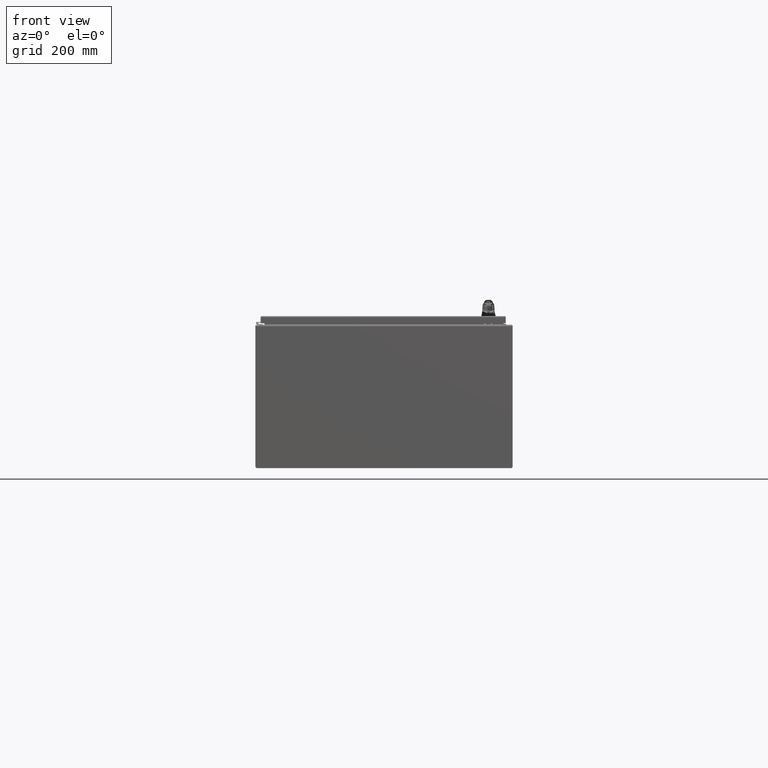
[diagram: clean part render]
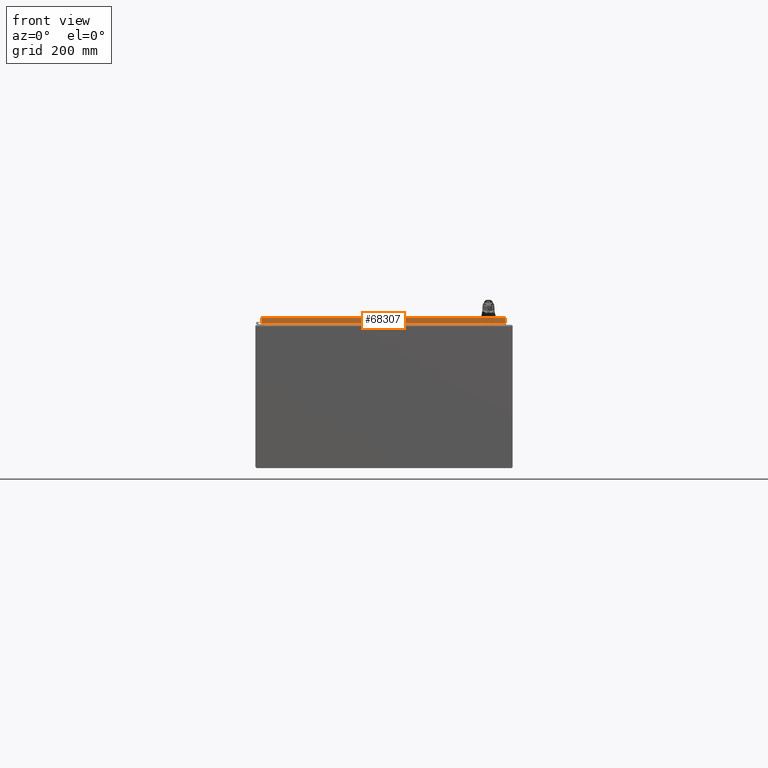
[diagram: same view with one face highlighted and labeled with its STEP entity id]
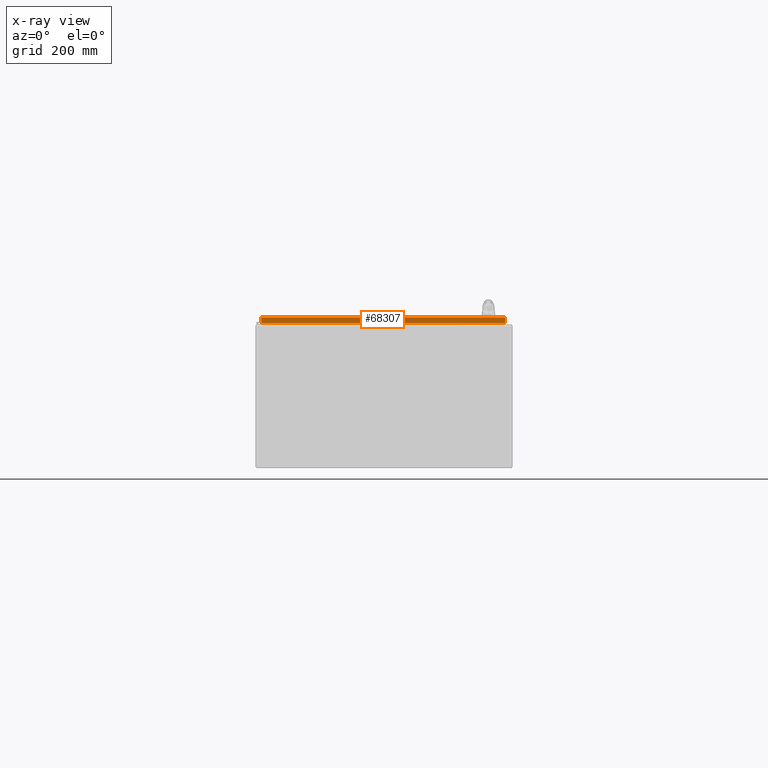
[diagram: x-ray of the same camera — body ghosted, the highlighted face saturated]
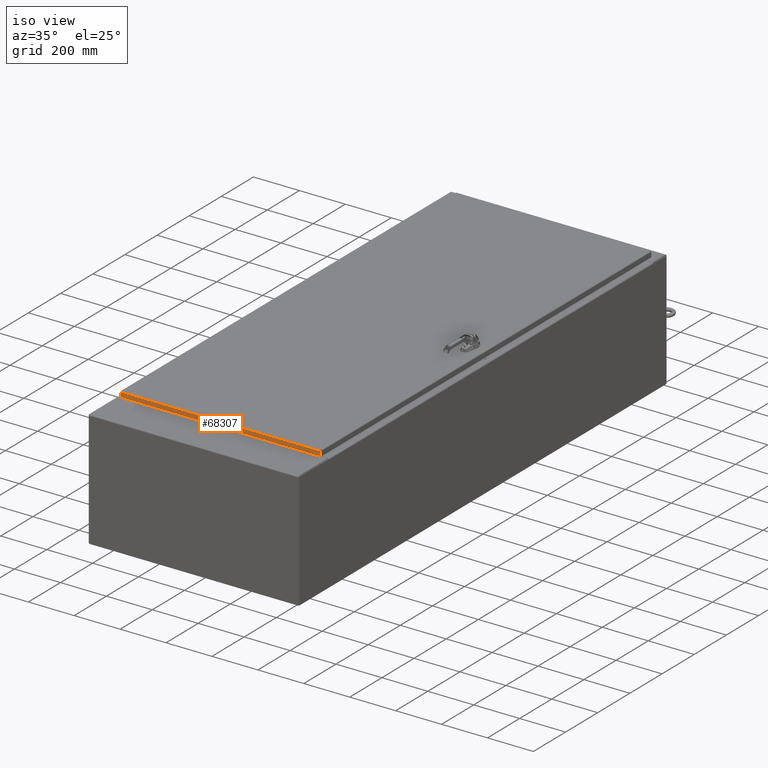
[diagram: same view with one face highlighted and labeled with its STEP entity id]
A machine part, front view. The second image highlights one B-rep face of the part: STEP entity #68307.
The next image is the same camera in x-ray: the body ghosted, the highlighted face saturated — about 0% of this face is hidden behind the body in this view.
A second angle (iso view) of the same face is appended — the face is thin or edge-on in the first view.
In plain terms, the highlighted planar face has unit normal (-0, -1, 0).
Its self-contained STEP definition (entity closure, byte-faithful):
#9332=PLANE('',#72202);
#10549=FACE_OUTER_BOUND('',#13527,.T.);
#13527=EDGE_LOOP('',(#51289,#51290,#51291,#51292));
#20351=LINE('',#97188,#25598);
#20357=LINE('',#97222,#25604);
#20362=LINE('',#97298,#25609);
#20364=LINE('',#97301,#25611);
#25598=VECTOR('',#79122,0.393700787401575);
#25604=VECTOR('',#79132,0.393700787401575);
#25609=VECTOR('',#79139,0.393700787401575);
#25611=VECTOR('',#79143,0.393700787401575);
#30758=VERTEX_POINT('',#97186);
#30759=VERTEX_POINT('',#97187);
#30765=VERTEX_POINT('',#97221);
#30767=VERTEX_POINT('',#97297);
#40168=EDGE_CURVE('',#30758,#30759,#20351,.T.);
#40176=EDGE_CURVE('',#30765,#30759,#20357,.T.);
#40183=EDGE_CURVE('',#30758,#30767,#20362,.T.);
#40185=EDGE_CURVE('',#30767,#30765,#20364,.T.);
#51289=ORIENTED_EDGE('',*,*,#40168,.T.);
#51290=ORIENTED_EDGE('',*,*,#40176,.F.);
#51291=ORIENTED_EDGE('',*,*,#40185,.F.);
#51292=ORIENTED_EDGE('',*,*,#40183,.F.);
#68307=ADVANCED_FACE('',(#10549),#9332,.T.);
#72202=AXIS2_PLACEMENT_3D('',#97302,#79144,#79145);
#79122=DIRECTION('',(-1.,7.51600963139691E-16,-1.42418009185658E-30));
#79132=DIRECTION('',(2.66240555512091E-30,5.39030285815812E-15,1.));
#79139=DIRECTION('',(-2.66240555512091E-30,-5.39030285815812E-15,-1.));
#79143=DIRECTION('',(-1.,8.14303708110736E-16,2.98194524608512E-18));
#79144=DIRECTION('center_axis',(-7.51600963139691E-16,-1.,5.42637680828855E-15));
#79145=DIRECTION('ref_axis',(1.,-7.51600963139688E-16,4.87389446768008E-16));
#97186=CARTESIAN_POINT('',(17.1140428932188,-40.5,-0.0937499999999987));
#97187=CARTESIAN_POINT('',(-17.1140428932188,-40.5,-0.0937499999999987));
#97188=CARTESIAN_POINT('',(-2.44020050423238E-15,-40.5,-0.0937499999999987));
#97221=CARTESIAN_POINT('',(-17.1140428932188,-40.5,-0.895999999999995));
#97222=CARTESIAN_POINT('',(-17.1140428932188,-40.5,-0.0937499999999987));
#97297=CARTESIAN_POINT('',(17.1140428932188,-40.5,-0.896000000000001));
#97298=CARTESIAN_POINT('',(17.1140428932188,-40.5,-0.0937500000000042));
#97301=CARTESIAN_POINT('',(17.1140428932188,-40.5,-0.896000000000001));
#97302=CARTESIAN_POINT('Origin',(8.27978694222175E-16,-40.5,-0.391724530908915));